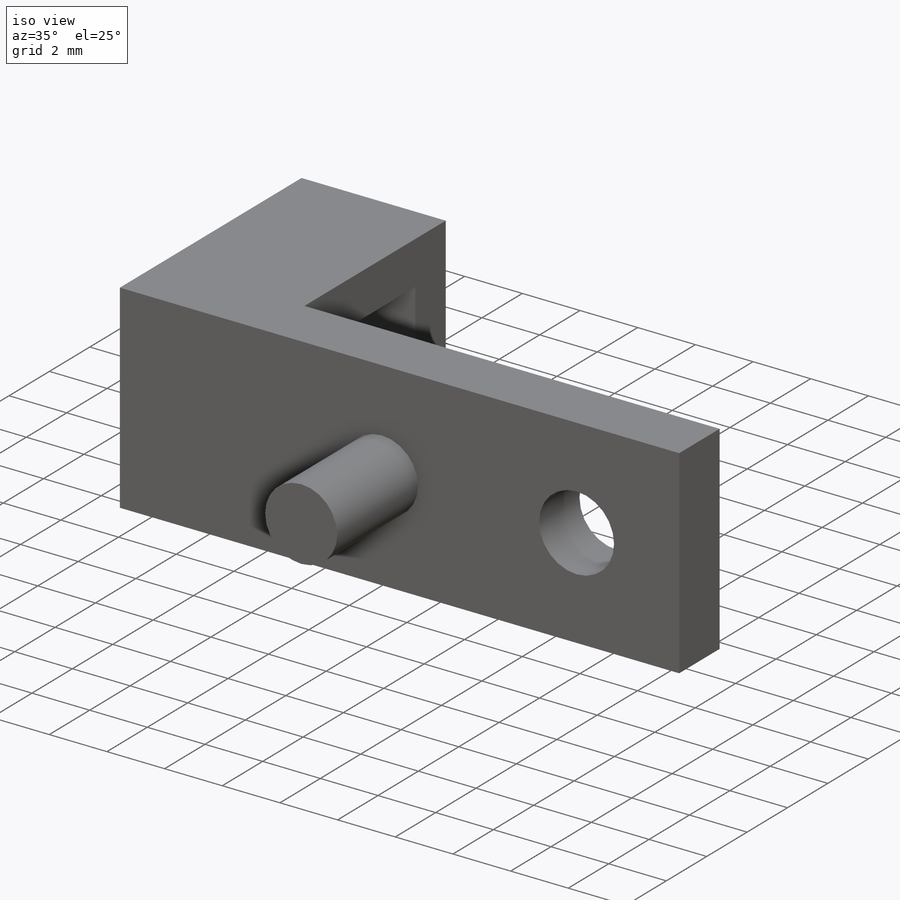
[diagram: iso view]
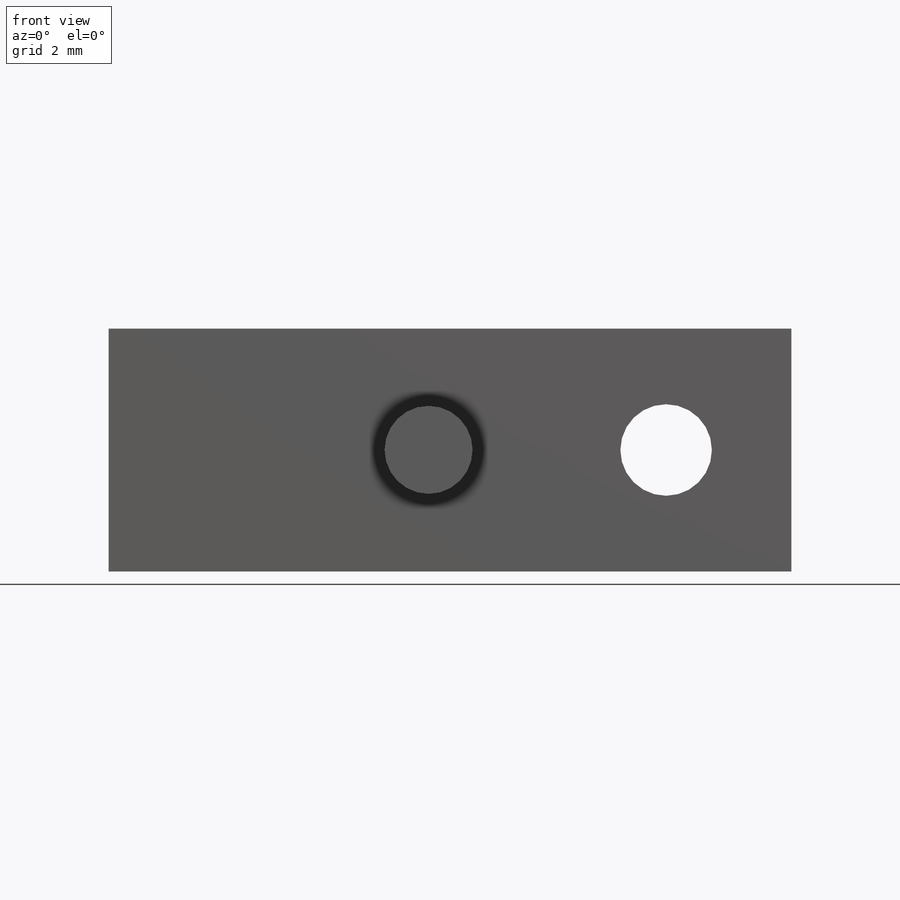
[diagram: front view]
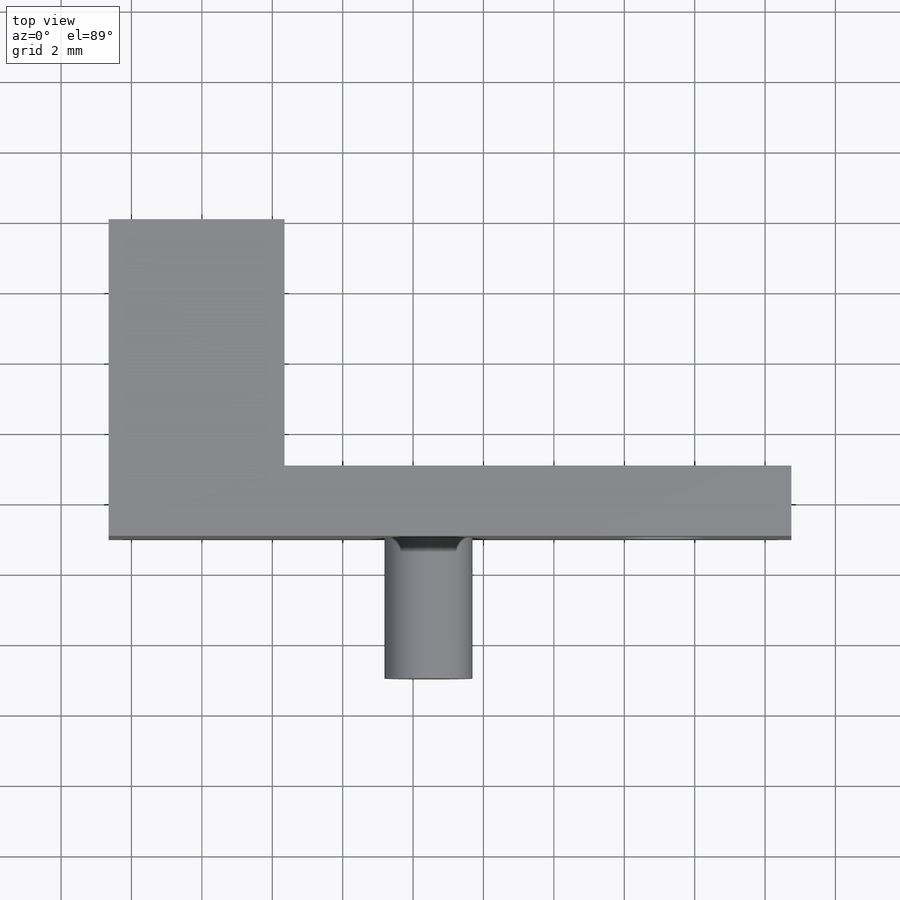
[diagram: top view]
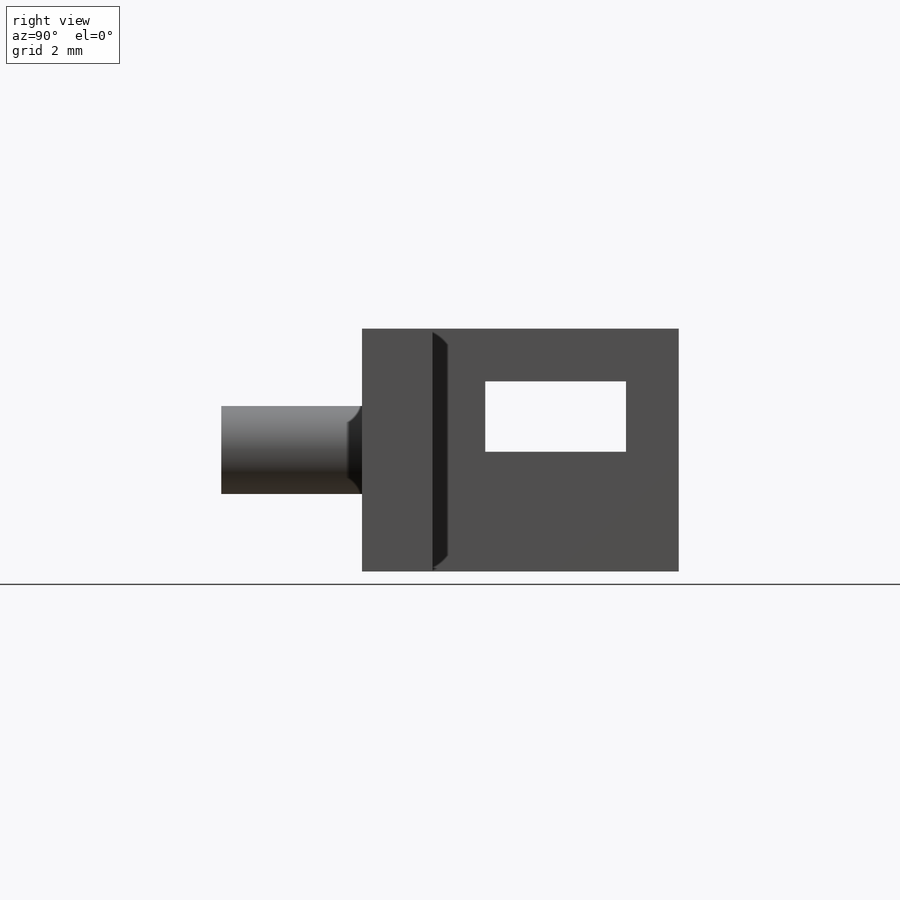
[diagram: right view]
SOLIDWORKS PART (.sldprt)
format: sldprt  version: not decoded by parser v0  size: 156,160 bytes
history: native  units: mm
features: sketch x4, extrude x2, cut_extrude x2, material x1 (+12 scaffold rows collapsed)
feature tree (21):
  scaffold x12  (default folders/planes/origin — collapsed)
  material  "Material <not specified>"
  sketch  "Sketch1"  dims[D1=19.4mm D2=2.0mm D3=9.0mm D4=5.0mm]
  extrude  "Boss-Extrude1"  Depth=6.9mm
  sketch  "Sketch2"  dims[c1.D1=~1.627207mm c1.D2=2.6mm c2.D1=3.45mm c2.D3=3.56mm]
  cut_extrude  "Cut-Extrude1"  [1 undecoded]
  sketch  "Sketch3"  dims[D1=2.5mm D2=6.75mm]
  extrude  "Boss-Extrude2"  Depth=4mm
  sketch  "Sketch4"  dims[c1.D1=~1.432862mm c1.D2=~2.538791mm c2.D1=2.0mm c2.D2=4.0mm c2.D3=1.5mm c2.D4=1.5mm]
  cut_extrude  "Cut-Extrude2"  [1 undecoded]
decode coverage: 6 of 8 modeling features carry decoded parameters
note: ~ marks probable driven/reference dimensions
note: 2 parameter values undecoded
note: suppression state not decoded; provenance and decode notes live in map.json
